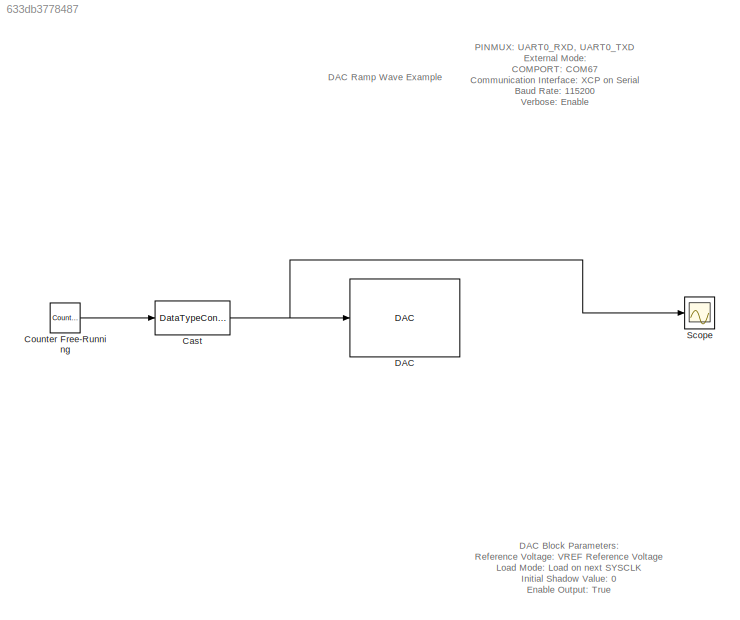
MODEL slx_633db3778487
KIND model
CONFIG AbsTol = auto
CONFIG EnableMultiTasking = off
CONFIG FixedStep = auto
CONFIG MaxStep = auto
CONFIG MinStep = auto
CONFIG RelTol = 1e-3
CONFIG SampleTimeConstraint = Unconstrained
CONFIG SolverName = FixedStepAuto
CONFIG StartTime = 0.0
CONFIG StopTime = inf
BLOCK [DataTypeConversion] Cast
  OutDataTypeStr = uint16
  RndMeth = Floor
  SaturateOnIntegerOverflow = off
BLOCK [Reference] Counter Free-Running  REF=simulink/Sources/Counter
Free-Running
  SourceBlock = simulink/Sources/Counter\nFree-Running
  SourceType = Counter Free-Running
BLOCK [Reference] DAC  REF=peripheral_library_blocks_am263x/DAC
  SourceBlock = peripheral_library_blocks_am263x/DAC
  SourceType = DAC_AM263X
BLOCK [Scope] Scope
  Floating = off
  NumInputPorts = 1
  ScopeSpecificationString = Simulink.scopes.TimeScopeBlockCfg('CurrentConfiguration', extmgr.ConfigurationSet(extmgr.Configuration('Core','General UI',true),extmgr.Configuration('Core','Source UI',true),extmgr.Configuration('Sources','WiredSimulink',true),extmgr.Configuration('Visuals','Time Domain',true,'SerializedDisplays',{struct('MinYLimReal','3100.875','MaxYLimReal','3132.125','YLabelReal','','MinYLimMag','3100.875','Ma...<+1456ch>
ANNOTATION (root): DAC Block Parameters: Reference Voltage: VREF Reference Voltage Load Mode: Load on next SYSCLK Initial Shadow Value: 0 Enable Output: True
ANNOTATION (root): DAC Ramp Wave Example
ANNOTATION (root): PINMUX: UART0_RXD, UART0_TXD External Mode: COMPORT: COM67 Communication Interface: XCP on Serial Baud Rate: 115200 Verbose: Enable
NET Cast:1 -> DAC:1, Scope:1
LINE Counter Free-Running:1 -> Cast:1
note: NET lines group one-source signal fan-out (src -> all destinations, sorted); 1:1 wires keep LINE
